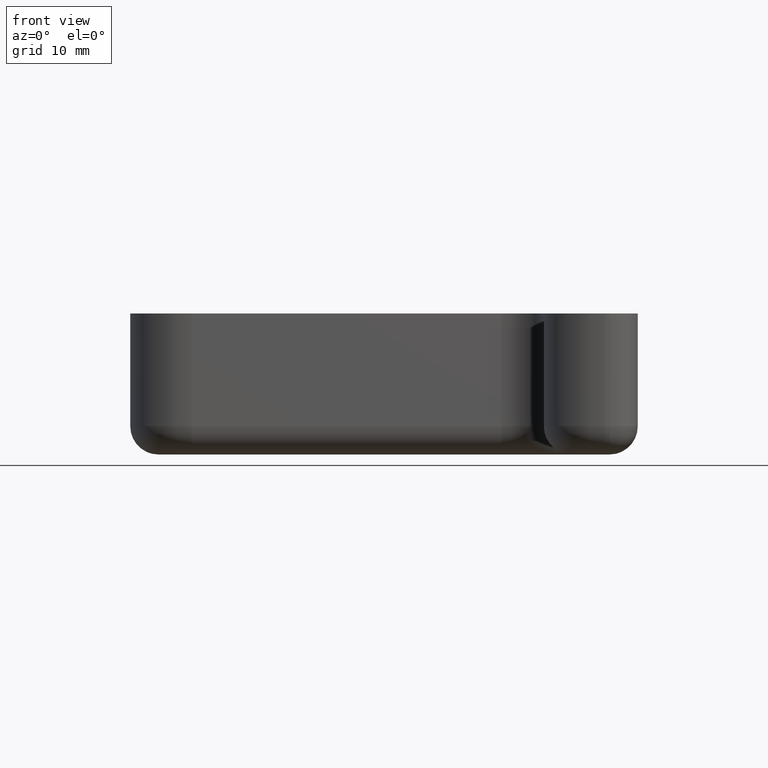
[diagram: clean part render]
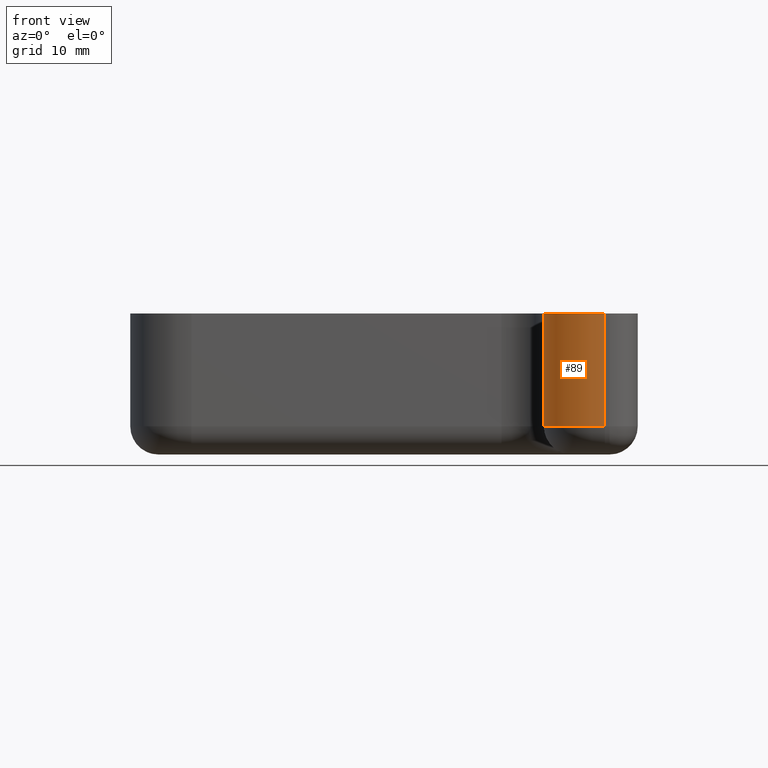
[diagram: same view with one face highlighted and labeled with its STEP entity id]
A machine part, front view. The second image highlights one B-rep face of the part: STEP entity #89.
In plain terms, the highlighted cylindrical surface (partial cylindrical patch) has radius 6.5 mm, axis along (0, 0, -1).
Its self-contained STEP definition (entity closure, byte-faithful):
#89 = ADVANCED_FACE( '', ( #144 ), #145, .T. );
#144 = FACE_OUTER_BOUND( '', #223, .T. );
#145 = CYLINDRICAL_SURFACE( '', #224, 6.50000000000000 );
#223 = EDGE_LOOP( '', ( #399, #400, #401, #402 ) );
#224 = AXIS2_PLACEMENT_3D( '', #403, #404, #405 );
#399 = ORIENTED_EDGE( '', *, *, #635, .F. );
#400 = ORIENTED_EDGE( '', *, *, #636, .T. );
#401 = ORIENTED_EDGE( '', *, *, #637, .T. );
#402 = ORIENTED_EDGE( '', *, *, #586, .F. );
#403 = CARTESIAN_POINT( '', ( -1.50000000000001, -45.5000000000000, -15.0000000000000 ) );
#404 = DIRECTION( '', ( 0.000000000000000, 0.000000000000000, -1.00000000000000 ) );
#405 = DIRECTION( '', ( 1.00000000000000, -1.83690953073357E-016, 0.000000000000000 ) );
#586 = EDGE_CURVE( '', #688, #690, #691, .T. );
#635 = EDGE_CURVE( '', #773, #688, #775, .T. );
#636 = EDGE_CURVE( '', #773, #776, #777, .T. );
#637 = EDGE_CURVE( '', #776, #690, #778, .T. );
#688 = VERTEX_POINT( '', #842 );
#690 = VERTEX_POINT( '', #845 );
#691 = CIRCLE( '', #846, 6.49999999999999 );
#773 = VERTEX_POINT( '', #958 );
#775 = LINE( '', #961, #962 );
#776 = VERTEX_POINT( '', #963 );
#777 = CIRCLE( '', #964, 6.50000000000000 );
#778 = LINE( '', #965, #966 );
#842 = CARTESIAN_POINT( '', ( -8.00000000000000, -45.5000000000000, 0.000000000000000 ) );
#845 = CARTESIAN_POINT( '', ( -1.50000000000001, -52.0000000000000, 0.000000000000000 ) );
#846 = AXIS2_PLACEMENT_3D( '', #1043, #1044, #1045 );
#958 = CARTESIAN_POINT( '', ( -8.00000000000000, -45.5000000000000, -12.0000000000000 ) );
#961 = CARTESIAN_POINT( '', ( -8.00000000000000, -45.5000000000000, -15.0000000000000 ) );
#962 = VECTOR( '', #1128, 1000.00000000000 );
#963 = CARTESIAN_POINT( '', ( -1.50000000000001, -52.0000000000000, -12.0000000000000 ) );
#964 = AXIS2_PLACEMENT_3D( '', #1129, #1130, #1131 );
#965 = CARTESIAN_POINT( '', ( -1.50000000000001, -52.0000000000000, -15.0000000000000 ) );
#966 = VECTOR( '', #1132, 1000.00000000000 );
#1043 = CARTESIAN_POINT( '', ( -1.50000000000001, -45.5000000000000, 0.000000000000000 ) );
#1044 = DIRECTION( '', ( 0.000000000000000, 0.000000000000000, 1.00000000000000 ) );
#1045 = DIRECTION( '', ( -1.00000000000000, 1.83690953073357E-016, 0.000000000000000 ) );
#1128 = DIRECTION( '', ( 0.000000000000000, 0.000000000000000, 1.00000000000000 ) );
#1129 = CARTESIAN_POINT( '', ( -1.50000000000001, -45.5000000000000, -12.0000000000000 ) );
#1130 = DIRECTION( '', ( 0.000000000000000, 0.000000000000000, 1.00000000000000 ) );
#1131 = DIRECTION( '', ( -1.00000000000000, 1.22460635382238E-016, 0.000000000000000 ) );
#1132 = DIRECTION( '', ( 0.000000000000000, 0.000000000000000, 1.00000000000000 ) );